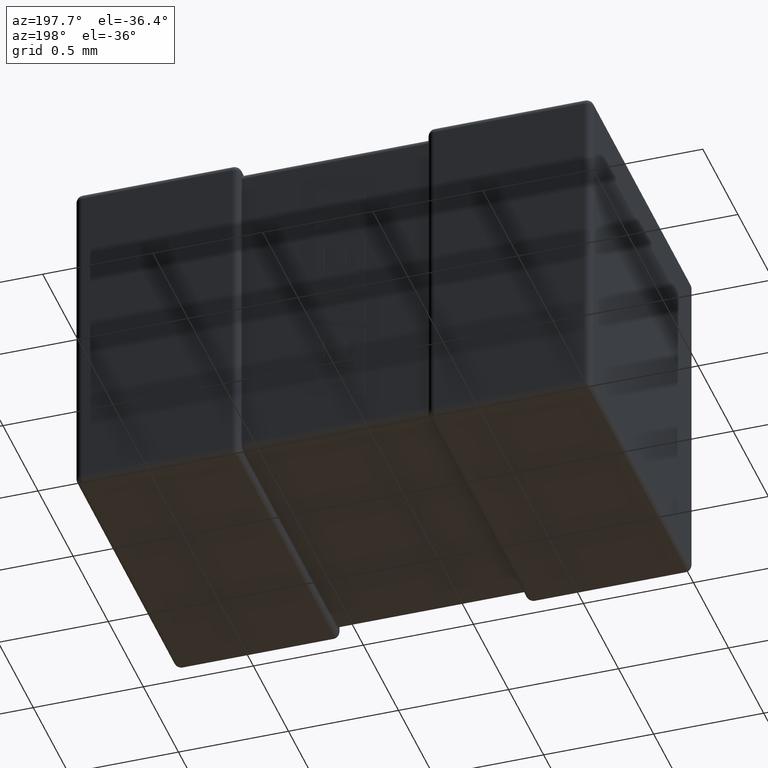
[diagram: clean part render]
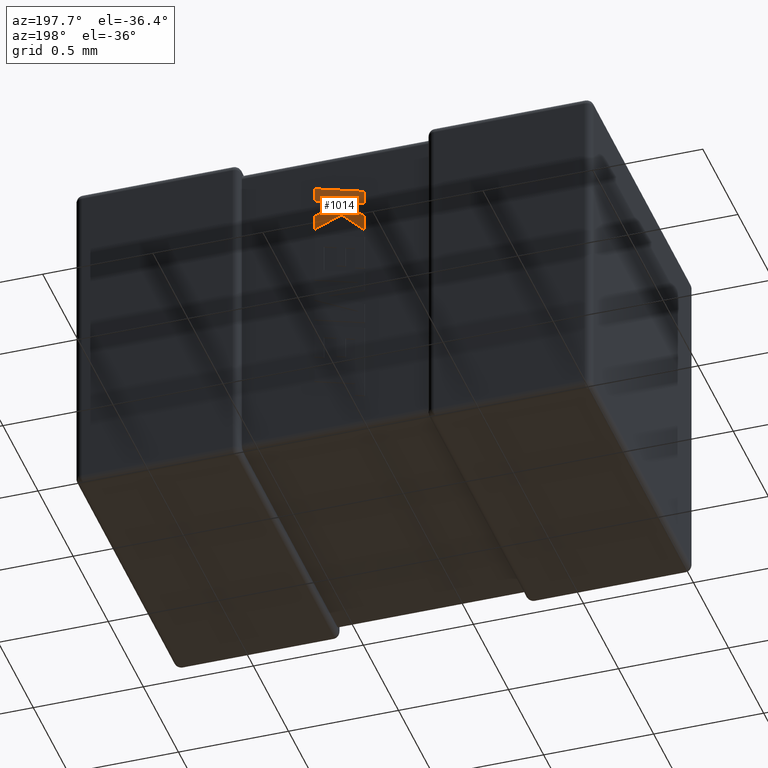
[diagram: same view with one face highlighted and labeled with its STEP entity id]
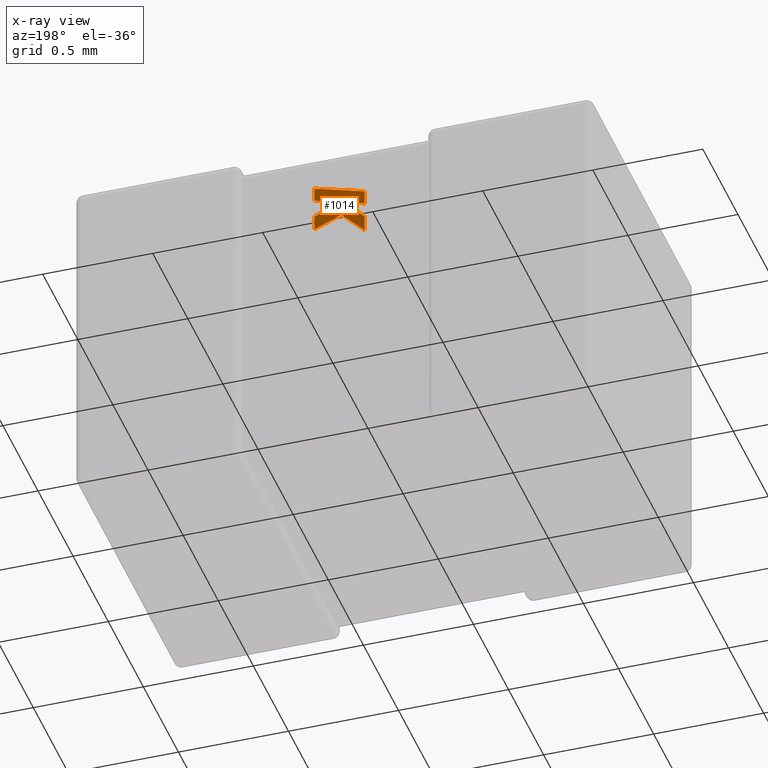
[diagram: x-ray of the same camera — body ghosted, the highlighted face saturated]
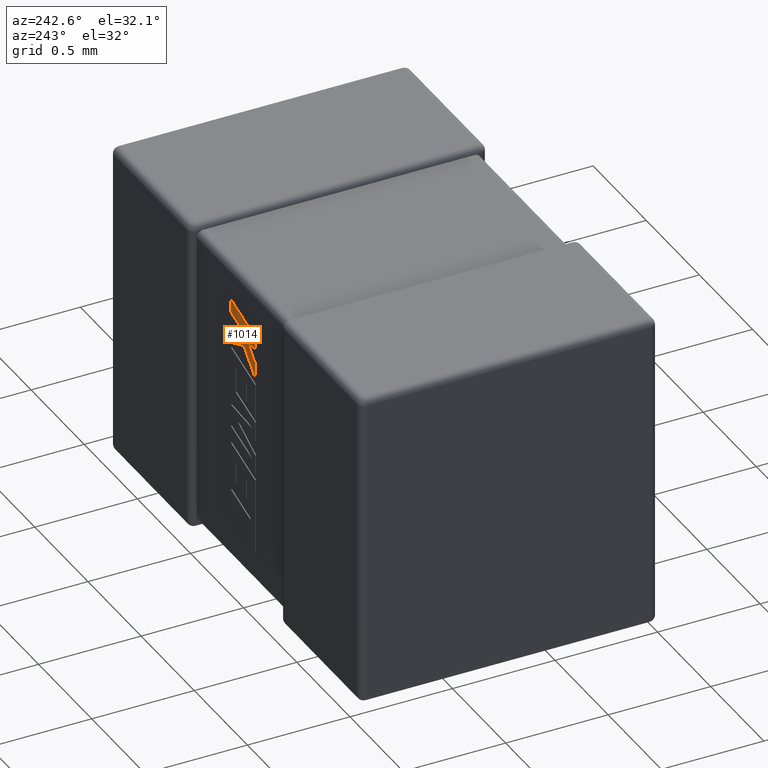
[diagram: same view with one face highlighted and labeled with its STEP entity id]
A machine part, auxiliary view. The second image highlights one B-rep face of the part: STEP entity #1014.
The next image is the same camera in x-ray: the body ghosted, the highlighted face saturated — about 0% of this face is hidden behind the body in this view.
A second angle (auxiliary view) of the same face is appended — the face is thin or edge-on in the first view.
In plain terms, the highlighted planar face has unit normal (0, -1, 0).
Its self-contained STEP definition (entity closure, byte-faithful):
#8 = EDGE_CURVE ( 'NONE', #4393, #4129, #86, .T. ) ;
#57 = LINE ( 'NONE', #1170, #2540 ) ;
#86 = LINE ( 'NONE', #632, #2677 ) ;
#153 = DIRECTION ( 'NONE',  ( -0.9612934544747571142, 0.000000000000000000, -0.2755265765475047313 ) ) ;
#185 = DIRECTION ( 'NONE',  ( 0.000000000000000000, 0.000000000000000000, -1.000000000000000000 ) ) ;
#187 = CARTESIAN_POINT ( 'NONE',  ( -0.2601923135456278291, 1.422759999999999581, 0.003507179810070972133 ) ) ;
#207 = LINE ( 'NONE', #1645, #3531 ) ;
#273 = FACE_OUTER_BOUND ( 'NONE', #2175, .T. ) ;
#373 = CARTESIAN_POINT ( 'NONE',  ( 1.041132956314514857, 1.422759999999999803, -0.2592350482359317976 ) ) ;
#399 = DIRECTION ( 'NONE',  ( -0.6995643972270459976, 0.000000000000000000, -0.7145695586381775044 ) ) ;
#406 = VERTEX_POINT ( 'NONE', #2492 ) ;
#604 = CARTESIAN_POINT ( 'NONE',  ( 1.145274379689100730, 1.422759999999999803, -0.2940072864894035520 ) ) ;
#605 = ORIENTED_EDGE ( 'NONE', *, *, #746, .T. ) ;
#632 = CARTESIAN_POINT ( 'NONE',  ( 1.269000000000003681, 1.422759999999999803, -0.4130027959786720659 ) ) ;
#675 = LINE ( 'NONE', #2876, #4224 ) ;
#721 = DIRECTION ( 'NONE',  ( -0.9612861490927336883, 0.000000000000000000, -0.2755520632520512270 ) ) ;
#746 = EDGE_CURVE ( 'NONE', #1118, #3846, #3933, .T. ) ;
#854 = AXIS2_PLACEMENT_3D ( 'NONE', #187, #917, #4611 ) ;
#917 = DIRECTION ( 'NONE',  ( 0.000000000000000000, -1.000000000000000000, 0.000000000000000000 ) ) ;
#1014 = ADVANCED_FACE ( 'NONE', ( #273 ), #2432, .F. ) ;
#1022 = EDGE_CURVE ( 'NONE', #4661, #2722, #2773, .T. ) ;
#1109 = VERTEX_POINT ( 'NONE', #2085 ) ;
#1118 = VERTEX_POINT ( 'NONE', #1271 ) ;
#1170 = CARTESIAN_POINT ( 'NONE',  ( 1.145274379689100730, 1.422759999999999803, -0.2940072864894035520 ) ) ;
#1271 = CARTESIAN_POINT ( 'NONE',  ( 1.145274379689097843, 1.422759999999999803, -0.3617177801565755191 ) ) ;
#1319 = VECTOR ( 'NONE', #2910, 1000.000000000000000 ) ;
#1404 = DIRECTION ( 'NONE',  ( -0.9237839814038673047, 0.000000000000000000, 0.3829140317376986125 ) ) ;
#1423 = ORIENTED_EDGE ( 'NONE', *, *, #2703, .T. ) ;
#1542 = VECTOR ( 'NONE', #1404, 1000.000000000000227 ) ;
#1633 = LINE ( 'NONE', #2027, #2599 ) ;
#1642 = VECTOR ( 'NONE', #4301, 1000.000000000000000 ) ;
#1645 = CARTESIAN_POINT ( 'NONE',  ( 1.268999999999999684, 1.422759999999999803, -0.1937500000000000056 ) ) ;
#1701 = ORIENTED_EDGE ( 'NONE', *, *, #8, .T. ) ;
#1737 = CARTESIAN_POINT ( 'NONE',  ( 1.269000000000003681, 1.422759999999999803, -0.2585449659703213943 ) ) ;
#1758 = LINE ( 'NONE', #1803, #1542 ) ;
#1803 = CARTESIAN_POINT ( 'NONE',  ( 1.145274379689097843, 1.422759999999999803, -0.3617177801565755191 ) ) ;
#2018 = DIRECTION ( 'NONE',  ( 0.9610992334315860974, 0.000000000000000000, 0.2762033010252007426 ) ) ;
#2027 = CARTESIAN_POINT ( 'NONE',  ( 1.269000000000003681, 1.422759999999999803, -0.3436703322758215551 ) ) ;
#2052 = ORIENTED_EDGE ( 'NONE', *, *, #3679, .T. ) ;
#2076 = EDGE_CURVE ( 'NONE', #4505, #406, #4573, .T. ) ;
#2085 = CARTESIAN_POINT ( 'NONE',  ( 1.269000000000003681, 1.422759999999999803, -0.2585449659703213943 ) ) ;
#2168 = ORIENTED_EDGE ( 'NONE', *, *, #3948, .T. ) ;
#2175 = EDGE_LOOP ( 'NONE', ( #4373, #3502, #1423, #2168, #1701, #4056, #605, #3225, #2654, #2052, #3738 ) ) ;
#2211 = CARTESIAN_POINT ( 'NONE',  ( 1.041132956314514857, 1.422759999999999803, -0.4680929633873127660 ) ) ;
#2313 = EDGE_CURVE ( 'NONE', #4129, #1118, #1758, .T. ) ;
#2382 = DIRECTION ( 'NONE',  ( 0.7083077534944018927, 0.000000000000000000, 0.7059037656364453017 ) ) ;
#2432 = PLANE ( 'NONE',  #854 ) ;
#2435 = CARTESIAN_POINT ( 'NONE',  ( 1.041132956314514857, 1.422759999999999803, -0.3931040437378230390 ) ) ;
#2492 = CARTESIAN_POINT ( 'NONE',  ( 1.041132956314514857, 1.422759999999999803, -0.2592350482359317976 ) ) ;
#2540 = VECTOR ( 'NONE', #153, 1000.000000000000114 ) ;
#2599 = VECTOR ( 'NONE', #4552, 1000.000000000000114 ) ;
#2654 = ORIENTED_EDGE ( 'NONE', *, *, #1022, .T. ) ;
#2677 = VECTOR ( 'NONE', #185, 1000.000000000000000 ) ;
#2703 = EDGE_CURVE ( 'NONE', #1109, #3530, #57, .T. ) ;
#2722 = VERTEX_POINT ( 'NONE', #3322 ) ;
#2773 = LINE ( 'NONE', #3166, #4036 ) ;
#2876 = CARTESIAN_POINT ( 'NONE',  ( 1.041132956314514857, 1.422759999999999803, -0.3241166210762970179 ) ) ;
#2910 = DIRECTION ( 'NONE',  ( 0.000000000000000000, 0.000000000000000000, 1.000000000000000000 ) ) ;
#3001 = VECTOR ( 'NONE', #3163, 1000.000000000000000 ) ;
#3113 = LINE ( 'NONE', #1737, #3001 ) ;
#3140 = CARTESIAN_POINT ( 'NONE',  ( 1.268999999999999684, 1.422759999999999803, -0.1937500000000000056 ) ) ;
#3163 = DIRECTION ( 'NONE',  ( 5.943634068010692500E-14, 0.000000000000000000, -1.000000000000000000 ) ) ;
#3166 = CARTESIAN_POINT ( 'NONE',  ( 1.138304273511819398, 1.422759999999999803, -0.2962625248033944891 ) ) ;
#3225 = ORIENTED_EDGE ( 'NONE', *, *, #3385, .T. ) ;
#3253 = EDGE_CURVE ( 'NONE', #4245, #1109, #3113, .T. ) ;
#3322 = CARTESIAN_POINT ( 'NONE',  ( 1.138304273511819398, 1.422759999999999803, -0.2962625248033944891 ) ) ;
#3331 = CARTESIAN_POINT ( 'NONE',  ( 1.269000000000003681, 1.422759999999999803, -0.4130027959786720659 ) ) ;
#3385 = EDGE_CURVE ( 'NONE', #3846, #4661, #4038, .T. ) ;
#3502 = ORIENTED_EDGE ( 'NONE', *, *, #3253, .T. ) ;
#3530 = VERTEX_POINT ( 'NONE', #604 ) ;
#3531 = VECTOR ( 'NONE', #2018, 1000.000000000000000 ) ;
#3667 = CARTESIAN_POINT ( 'NONE',  ( 1.041132956314514857, 1.422759999999999803, -0.3241166210762970179 ) ) ;
#3679 = EDGE_CURVE ( 'NONE', #2722, #4505, #675, .T. ) ;
#3738 = ORIENTED_EDGE ( 'NONE', *, *, #2076, .T. ) ;
#3846 = VERTEX_POINT ( 'NONE', #4170 ) ;
#3933 = LINE ( 'NONE', #2211, #4263 ) ;
#3948 = EDGE_CURVE ( 'NONE', #3530, #4393, #1633, .T. ) ;
#4036 = VECTOR ( 'NONE', #2382, 1000.000000000000114 ) ;
#4038 = LINE ( 'NONE', #4320, #1642 ) ;
#4056 = ORIENTED_EDGE ( 'NONE', *, *, #2313, .T. ) ;
#4129 = VERTEX_POINT ( 'NONE', #3331 ) ;
#4170 = CARTESIAN_POINT ( 'NONE',  ( 1.041132956314514857, 1.422759999999999803, -0.4680929633873127660 ) ) ;
#4209 = EDGE_CURVE ( 'NONE', #406, #4245, #207, .T. ) ;
#4224 = VECTOR ( 'NONE', #721, 1000.000000000000114 ) ;
#4245 = VERTEX_POINT ( 'NONE', #3140 ) ;
#4263 = VECTOR ( 'NONE', #399, 1000.000000000000000 ) ;
#4301 = DIRECTION ( 'NONE',  ( 0.000000000000000000, 0.000000000000000000, 1.000000000000000000 ) ) ;
#4320 = CARTESIAN_POINT ( 'NONE',  ( 1.041132956314514857, 1.422759999999999803, -0.3931040437378230390 ) ) ;
#4373 = ORIENTED_EDGE ( 'NONE', *, *, #4209, .T. ) ;
#4393 = VERTEX_POINT ( 'NONE', #4663 ) ;
#4505 = VERTEX_POINT ( 'NONE', #3667 ) ;
#4552 = DIRECTION ( 'NONE',  ( 0.9280290862136694185, 0.000000000000000000, -0.3725077383644825324 ) ) ;
#4573 = LINE ( 'NONE', #373, #1319 ) ;
#4611 = DIRECTION ( 'NONE',  ( 0.000000000000000000, 0.000000000000000000, -1.000000000000000000 ) ) ;
#4661 = VERTEX_POINT ( 'NONE', #2435 ) ;
#4663 = CARTESIAN_POINT ( 'NONE',  ( 1.269000000000003681, 1.422759999999999803, -0.3436703322758215551 ) ) ;